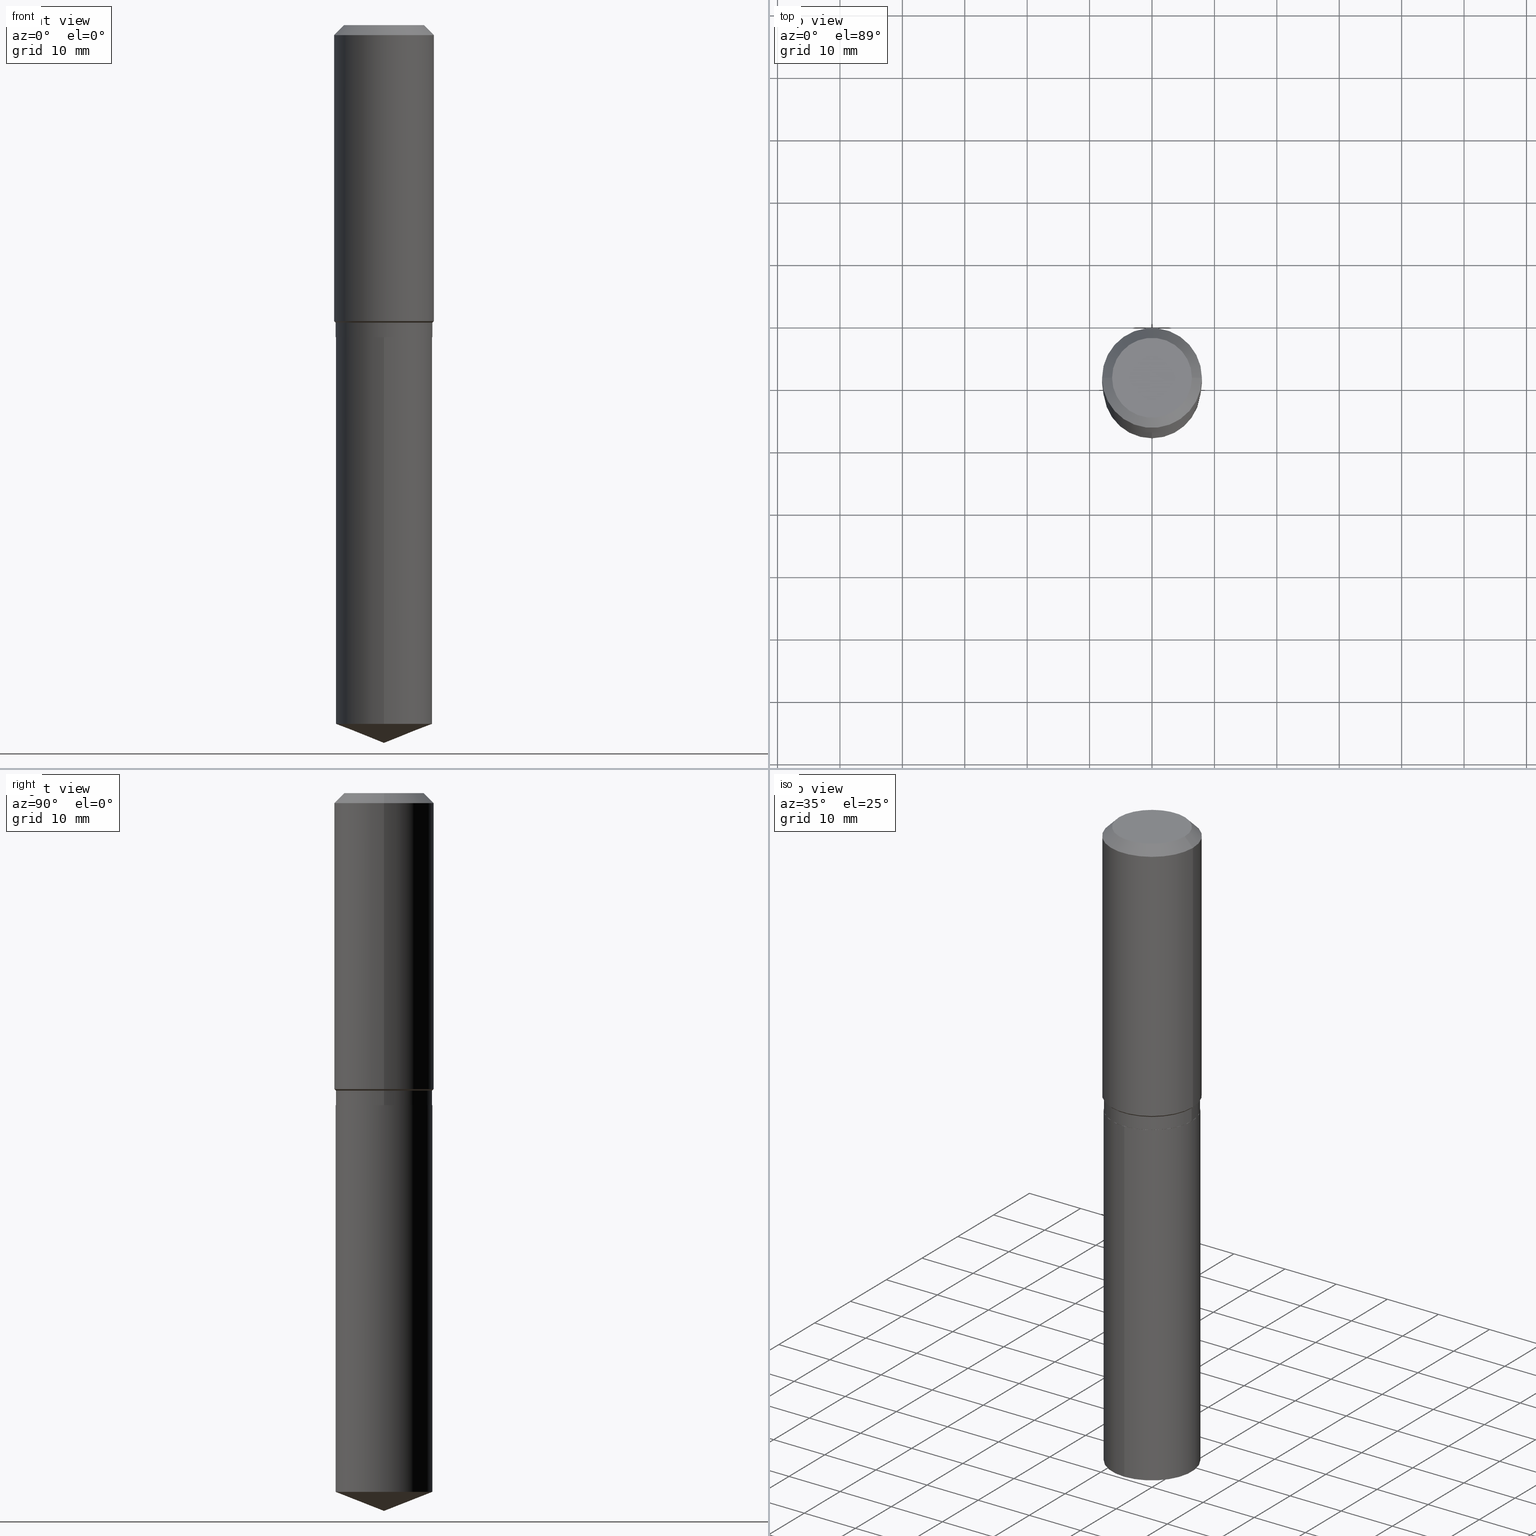
[diagram: canonical four-view strip — front | top / right | iso, engineering-drawing reading convention]
A machine part, canonical four-view strip (front | top / right | iso — engineering-drawing reading convention). The complete STEP part file that produces these views, byte-faithful:
ISO-10303-21;
HEADER;
FILE_DESCRIPTION (( 'STEP AP203' ),
    '1' );
FILE_NAME ('66500.STEP',
    '2024-04-24T23:49:17',
    ( '' ),
    ( '' ),
    'SwSTEP 2.0',
    'SolidWorks 2023',
    '' );
FILE_SCHEMA (( 'CONFIG_CONTROL_DESIGN' ));
ENDSEC;

DATA;
#1 = AXIS2_PLACEMENT_3D ( 'NONE', #12, #79, #279 ) ;
#2 = CARTESIAN_POINT ( 'NONE',  ( 0.2519600000000000173, -2.054606664725195058E-15, 3.855188123729206640E-18 ) ) ;
#3 = APPROVAL_PERSON_ORGANIZATION ( #462, #112, #424 ) ;
#4 = ORIENTED_EDGE ( 'NONE', *, *, #351, .F. ) ;
#5 = PERSON_AND_ORGANIZATION_ROLE ( 'design_supplier' ) ;
#6 = ORIENTED_EDGE ( 'NONE', *, *, #400, .T. ) ;
#7 = DIRECTION ( 'NONE',  ( -2.445468806185136597E-29, 3.491481338843145583E-15, 1.000000000000000000 ) ) ;
#8 = CIRCLE ( 'NONE', #132, 0.3050999999999999823 ) ;
#9 = DIRECTION ( 'NONE',  ( -2.445510039064079162E-29, 3.491422291013670313E-15, 1.000000000000000000 ) ) ;
#10 = EDGE_CURVE ( 'NONE', #343, #380, #152, .T. ) ;
#11 =( NAMED_UNIT ( * ) PLANE_ANGLE_UNIT ( ) SI_UNIT ( $, .RADIAN. ) );
#12 = CARTESIAN_POINT ( 'NONE',  ( 1.540400801016026329E-30, -2.199284095337310135E-16, -0.06299000000000036514 ) ) ;
#13 = PERSON_AND_ORGANIZATION_ROLE ( 'creator' ) ;
#14 = DIRECTION ( 'NONE',  ( 0.7071067811866199593, -2.468850131083015945E-15, 0.7071067811864750752 ) ) ;
#15 = DIRECTION ( 'NONE',  ( 1.000000000000000000, -6.982962677686265922E-15, 4.876176775795935232E-29 ) ) ;
#16 = VECTOR ( 'NONE', #50, 39.37007874015748143 ) ;
#17 = MANIFOLD_SOLID_BREP ( 'Body-Move/Copy2[1]', #53 ) ;
#18 = CARTESIAN_POINT ( 'NONE',  ( -0.3149500000000002298, -4.281265035544539989E-15, -1.867149999999999421 ) ) ;
#19 = CC_DESIGN_PERSON_AND_ORGANIZATION_ASSIGNMENT ( #357, #13, ( #363 ) ) ;
#20 = CARTESIAN_POINT ( 'NONE',  ( 4.813905344975440153E-29, -6.872981015512730130E-15, -1.968499999999999472 ) ) ;
#21 = CYLINDRICAL_SURFACE ( 'NONE', #259, 0.3050999999999999823 ) ;
#22 = VECTOR ( 'NONE', #83, 39.37007874015748854 ) ;
#23 = VECTOR ( 'NONE', #338, 39.37007874015748143 ) ;
#24 = EDGE_CURVE ( 'NONE', #447, #222, #321, .T. ) ;
#25 = CARTESIAN_POINT ( 'NONE',  ( 4.813905344975440153E-29, -6.872981015512730130E-15, -1.968499999999999472 ) ) ;
#26 = ORIENTED_EDGE ( 'NONE', *, *, #24, .F. ) ;
#27 = CYLINDRICAL_SURFACE ( 'NONE', #106, 0.3050999999999999823 ) ;
#28 = ADVANCED_FACE ( 'NONE', ( #385 ), #276, .T. ) ;
#29 = ORIENTED_EDGE ( 'NONE', *, *, #86, .T. ) ;
#30 = ORIENTED_EDGE ( 'NONE', *, *, #483, .F. ) ;
#31 = VECTOR ( 'NONE', #325, 39.37007874015748143 ) ;
#32 = DIRECTION ( 'NONE',  ( -2.445468806185136877E-29, 3.491481338843145188E-15, 1.000000000000000000 ) ) ;
#33 = EDGE_LOOP ( 'NONE', ( #257, #457, #339, #133 ) ) ;
#34 = LINE ( 'NONE', #416, #23 ) ;
#35 = ORIENTED_EDGE ( 'NONE', *, *, #435, .F. ) ;
#36 = DIRECTION ( 'NONE',  ( -2.445510039064079162E-29, 3.491422291013670313E-15, 1.000000000000000000 ) ) ;
#37 = ORIENTED_EDGE ( 'NONE', *, *, #61, .T. ) ;
#38 = AXIS2_PLACEMENT_3D ( 'NONE', #432, #273, #275 ) ;
#39 = CC_DESIGN_SECURITY_CLASSIFICATION ( #134, ( #149 ) ) ;
#40 = EDGE_LOOP ( 'NONE', ( #238, #378, #98, #4 ) ) ;
#41 = DIRECTION ( 'NONE',  ( 1.000000000000000000, -6.982962677686266711E-15, 4.876115136096691995E-29 ) ) ;
#42 = CARTESIAN_POINT ( 'NONE',  ( 4.813905344975440153E-29, -6.872981015512730130E-15, -1.968499999999999472 ) ) ;
#43 = EDGE_CURVE ( 'NONE', #485, #380, #397, .T. ) ;
#44 = APPROVAL_ROLE ( '' ) ;
#45 = CIRCLE ( 'NONE', #229, 0.3045999999999999819 ) ;
#46 = LINE ( 'NONE', #76, #405 ) ;
#47 = CC_DESIGN_APPROVAL ( #282, ( #363 ) ) ;
#48 = CC_DESIGN_DATE_AND_TIME_ASSIGNMENT ( #390, #278, ( #363 ) ) ;
#49 = LENGTH_MEASURE_WITH_UNIT ( LENGTH_MEASURE( 0.02539999999999999897 ), #460 );
#50 = DIRECTION ( 'NONE',  ( -2.445468806185136877E-29, 3.491481338843145188E-15, 1.000000000000000000 ) ) ;
#51 = FACE_OUTER_BOUND ( 'NONE', #383, .T. ) ;
#52 = EDGE_CURVE ( 'NONE', #228, #440, #413, .T. ) ;
#53 = CLOSED_SHELL ( 'NONE', ( #340, #265, #381, #332, #216 ) ) ;
#54 = VECTOR ( 'NONE', #422, 39.37007874015748143 ) ;
#55 = EDGE_CURVE ( 'NONE', #85, #450, #389, .T. ) ;
#56 = AXIS2_PLACEMENT_3D ( 'NONE', #311, #235, #358 ) ;
#57 = APPROVAL ( #236, 'UNSPECIFIED' ) ;
#58 = AXIS2_PLACEMENT_3D ( 'NONE', #154, #201, #41 ) ;
#59 = LOCAL_TIME ( 19, 49, 17.00000000000000000, #231 ) ;
#60 = LINE ( 'NONE', #248, #31 ) ;
#61 = EDGE_CURVE ( 'NONE', #418, #380, #284, .T. ) ;
#62 = CARTESIAN_POINT ( 'NONE',  ( -0.3149500000000001743, 2.237854346276436774E-15, -1.549218606675783237E-29 ) ) ;
#63 = ORIENTED_EDGE ( 'NONE', *, *, #324, .T. ) ;
#64 = CARTESIAN_POINT ( 'NONE',  ( 0.3045999999999999819, -8.999991447135967386E-15, -1.968499999999999472 ) ) ;
#65 = EDGE_LOOP ( 'NONE', ( #192, #100, #225, #141 ) ) ;
#66 = AXIS2_PLACEMENT_3D ( 'NONE', #212, #130, #280 ) ;
#67 = AXIS2_PLACEMENT_3D ( 'NONE', #25, #488, #291 ) ;
#68 = LINE ( 'NONE', #379, #128 ) ;
#69 = EDGE_LOOP ( 'NONE', ( #306, #297, #490, #37 ) ) ;
#70 = DIRECTION ( 'NONE',  ( -2.445510039064079162E-29, 3.491422291013670313E-15, 1.000000000000000000 ) ) ;
#71 = ORIENTED_EDGE ( 'NONE', *, *, #155, .F. ) ;
#72 = DIRECTION ( 'NONE',  ( 1.000000000000000000, -6.982962677686265922E-15, 4.876176775795935232E-29 ) ) ;
#73 = DIRECTION ( 'NONE',  ( 1.000000000000000000, -6.982962677686268288E-15, 0.000000000000000000 ) ) ;
#74 = VECTOR ( 'NONE', #480, 39.37007874015748143 ) ;
#75 = CALENDAR_DATE ( 2024, 24, 4 ) ;
#76 = CARTESIAN_POINT ( 'NONE',  ( 0.3045999999999999819, -8.999991447135967386E-15, -1.968499999999999472 ) ) ;
#77 = PERSON_AND_ORGANIZATION ( #296, #286 ) ;
#78 = ADVANCED_FACE ( 'NONE', ( #51 ), #125, .T. ) ;
#79 = DIRECTION ( 'NONE',  ( 2.445468806185136597E-29, -3.491481338843145583E-15, -1.000000000000000000 ) ) ;
#80 = DIRECTION ( 'NONE',  ( 1.000000000000000000, -6.982962677686265133E-15, 0.000000000000000000 ) ) ;
#81 = CALENDAR_DATE ( 2024, 24, 4 ) ;
#82 = AXIS2_PLACEMENT_3D ( 'NONE', #174, #244, #402 ) ;
#83 = DIRECTION ( 'NONE',  ( -6.497071151882117470E-15, -0.9304175679820243516, 0.3665012267242979127 ) ) ;
#84 = AXIS2_PLACEMENT_3D ( 'NONE', #307, #36, #458 ) ;
#85 = VERTEX_POINT ( 'NONE', #196 ) ;
#86 = EDGE_CURVE ( 'NONE', #179, #343, #269, .T. ) ;
#87 = FACE_OUTER_BOUND ( 'NONE', #40, .T. ) ;
#88 = CYLINDRICAL_SURFACE ( 'NONE', #314, 0.3149500000000001743 ) ;
#89 = AXIS2_PLACEMENT_3D ( 'NONE', #20, #289, #437 ) ;
#90 = CONICAL_SURFACE ( 'NONE', #277, 99.94676754583970535, 1.195550537616118625 ) ;
#91 = EDGE_CURVE ( 'NONE', #447, #175, #271, .T. ) ;
#92 = FACE_OUTER_BOUND ( 'NONE', #481, .T. ) ;
#93 = CARTESIAN_POINT ( 'NONE',  ( 4.813905344975440153E-29, -6.872981015512730130E-15, -1.968499999999999472 ) ) ;
#94 = EDGE_CURVE ( 'NONE', #175, #348, #441, .T. ) ;
#95 = APPLICATION_CONTEXT ( 'configuration controlled 3d designs of mechanical parts and assemblies' ) ;
#96 = VECTOR ( 'NONE', #32, 39.37007874015748143 ) ;
#97 = FACE_OUTER_BOUND ( 'NONE', #33, .T. ) ;
#98 = ORIENTED_EDGE ( 'NONE', *, *, #200, .F. ) ;
#99 = DIRECTION ( 'NONE',  ( -2.445468806185136597E-29, 3.491481338843145583E-15, 1.000000000000000000 ) ) ;
#100 = ORIENTED_EDGE ( 'NONE', *, *, #346, .T. ) ;
#101 = DIRECTION ( 'NONE',  ( 1.000000000000000000, -6.982962677686265133E-15, 0.000000000000000000 ) ) ;
#102 = PRODUCT ( '66500', '66500', '', ( #392 ) ) ;
#103 = ORIENTED_EDGE ( 'NONE', *, *, #472, .T. ) ;
#104 = ORIENTED_EDGE ( 'NONE', *, *, #230, .F. ) ;
#105 = CIRCLE ( 'NONE', #159, 0.3050999999999999823 ) ;
#106 = AXIS2_PLACEMENT_3D ( 'NONE', #371, #99, #256 ) ;
#107 = FACE_OUTER_BOUND ( 'NONE', #148, .T. ) ;
#108 = ORIENTED_EDGE ( 'NONE', *, *, #164, .T. ) ;
#109 = ORIENTED_EDGE ( 'NONE', *, *, #478, .F. ) ;
#110 = CARTESIAN_POINT ( 'NONE',  ( 0.3149500000000002298, -8.718403477158267422E-15, -1.867149999999999421 ) ) ;
#111 = EDGE_LOOP ( 'NONE', ( #317, #185 ) ) ;
#112 = APPROVAL ( #270, 'UNSPECIFIED' ) ;
#113 = UNCERTAINTY_MEASURE_WITH_UNIT (LENGTH_MEASURE( 1.000000000000000082E-05 ), #124, 'distance_accuracy_value', 'NONE');
#114 = COORDINATED_UNIVERSAL_TIME_OFFSET ( 5, 0, .BEHIND. ) ;
#115 = DIRECTION ( 'NONE',  ( 1.000000000000000000, -6.982962677686265133E-15, 0.000000000000000000 ) ) ;
#116 = EDGE_LOOP ( 'NONE', ( #408, #220, #336, #30 ) ) ;
#117 = EDGE_CURVE ( 'NONE', #485, #295, #205, .T. ) ;
#118 = AXIS2_PLACEMENT_3D ( 'NONE', #263, #420, #73 ) ;
#119 = APPROVAL_PERSON_ORGANIZATION ( #157, #57, #153 ) ;
#120 = CARTESIAN_POINT ( 'NONE',  ( 0.000000000000000000, 0.000000000000000000, 0.000000000000000000 ) ) ;
#121 = DIRECTION ( 'NONE',  ( 1.000000000000000000, -6.982962677686267499E-15, 0.000000000000000000 ) ) ;
#122 = DIRECTION ( 'NONE',  ( 1.000000000000000000, -6.982962677686266711E-15, 0.000000000000000000 ) ) ;
#123 = LINE ( 'NONE', #267, #54 ) ;
#124 =( CONVERSION_BASED_UNIT ( 'INCH', #49 ) LENGTH_UNIT ( ) NAMED_UNIT ( #444 ) );
#125 = CONICAL_SURFACE ( 'NONE', #139, 0.3050999999999999823, 0.7853981633974518317 ) ;
#126 = LOCAL_TIME ( 19, 49, 17.00000000000000000, #166 ) ;
#127 = DIRECTION ( 'NONE',  ( -2.445468806185136597E-29, 3.491481338843145583E-15, 1.000000000000000000 ) ) ;
#128 = VECTOR ( 'NONE', #260, 39.37007874015748143 ) ;
#129 = EDGE_CURVE ( 'NONE', #345, #450, #180, .T. ) ;
#130 = DIRECTION ( 'NONE',  ( -2.445468806185136597E-29, 3.491481338843145583E-15, 1.000000000000000000 ) ) ;
#131 = DIRECTION ( 'NONE',  ( -6.982962677686265133E-15, -1.000000000000000000, 3.581577179500837048E-15 ) ) ;
#132 = AXIS2_PLACEMENT_3D ( 'NONE', #370, #245, #434 ) ;
#133 = ORIENTED_EDGE ( 'NONE', *, *, #135, .F. ) ;
#134 = SECURITY_CLASSIFICATION ( '', '', #464 ) ;
#135 = EDGE_CURVE ( 'NONE', #222, #348, #123, .T. ) ;
#136 = LINE ( 'NONE', #242, #394 ) ;
#137 = DIRECTION ( 'NONE',  ( 6.982962677686265922E-15, 1.000000000000000000, -3.491422291013670313E-15 ) ) ;
#138 = CARTESIAN_POINT ( 'NONE',  ( 2.167865886804172432E-15, 0.3050999999999845502, -4.407417913889882577 ) ) ;
#139 = AXIS2_PLACEMENT_3D ( 'NONE', #427, #7, #80 ) ;
#140 = CARTESIAN_POINT ( 'NONE',  ( -2.130501912961971401E-15, -0.3051000000000153034, -4.407417913889880801 ) ) ;
#141 = ORIENTED_EDGE ( 'NONE', *, *, #43, .F. ) ;
#142 = PRODUCT_DEFINITION_SHAPE ( 'NONE', 'NONE',  #363 ) ;
#143 = EDGE_CURVE ( 'NONE', #228, #447, #158, .T. ) ;
#144 = CARTESIAN_POINT ( 'NONE',  ( 1.540400801016026329E-30, -2.199284095337310135E-16, -0.06299000000000036514 ) ) ;
#145 = EDGE_LOOP ( 'NONE', ( #443, #156, #191, #104 ) ) ;
#146 = ORIENTED_EDGE ( 'NONE', *, *, #478, .T. ) ;
#147 = CARTESIAN_POINT ( 'NONE',  ( -2.130501912962031354E-15, -0.3051000000000068657, -1.968499999999998362 ) ) ;
#148 = EDGE_LOOP ( 'NONE', ( #227, #261, #187 ) ) ;
#149 = PRODUCT_DEFINITION_FORMATION_WITH_SPECIFIED_SOURCE ( 'ANY', '', #102, .NOT_KNOWN. ) ;
#150 = EDGE_CURVE ( 'NONE', #380, #418, #342, .T. ) ;
#151 = DIRECTION ( 'NONE',  ( -6.982962677686266711E-15, -1.000000000000000000, 3.498627837350013689E-15 ) ) ;
#152 = LINE ( 'NONE', #309, #361 ) ;
#153 = APPROVAL_ROLE ( '' ) ;
#154 = CARTESIAN_POINT ( 'NONE',  ( -9.427742298522569579E-47, 1.346031739168368629E-32, 3.855188123715871501E-18 ) ) ;
#155 = EDGE_CURVE ( 'NONE', #440, #222, #46, .T. ) ;
#156 = ORIENTED_EDGE ( 'NONE', *, *, #10, .T. ) ;
#157 = PERSON_AND_ORGANIZATION ( #296, #286 ) ;
#158 = LINE ( 'NONE', #237, #369 ) ;
#159 = AXIS2_PLACEMENT_3D ( 'NONE', #42, #9, #131 ) ;
#160 = PERSON_AND_ORGANIZATION ( #296, #286 ) ;
#161 = CARTESIAN_POINT ( 'NONE',  ( 4.813905344975440153E-29, -6.872981015512730130E-15, -1.968499999999999472 ) ) ;
#162 = CARTESIAN_POINT ( 'NONE',  ( -0.3050999999999999823, 2.167865886804065542E-15, -1.500767096036771618E-29 ) ) ;
#163 = CALENDAR_DATE ( 2024, 24, 4 ) ;
#164 = EDGE_CURVE ( 'NONE', #440, #228, #45, .T. ) ;
#165 = FACE_OUTER_BOUND ( 'NONE', #417, .T. ) ;
#166 = COORDINATED_UNIVERSAL_TIME_OFFSET ( 5, 0, .BEHIND. ) ;
#167 = AXIS2_PLACEMENT_3D ( 'NONE', #320, #232, #425 ) ;
#168 = CIRCLE ( 'NONE', #292, 0.3050999999999999823 ) ;
#169 = FACE_OUTER_BOUND ( 'NONE', #288, .T. ) ;
#170 = DIRECTION ( 'NONE',  ( -0.7071067811865453523, 2.468850131082234184E-15, -0.7071067811865496822 ) ) ;
#171 = ADVANCED_FACE ( 'NONE', ( #165 ), #319, .T. ) ;
#172 = CARTESIAN_POINT ( 'NONE',  ( 4.813905344975440153E-29, -6.872981015512730130E-15, -1.968499999999999472 ) ) ;
#173 = AXIS2_PLACEMENT_3D ( 'NONE', #419, #186, #299 ) ;
#174 = CARTESIAN_POINT ( 'NONE',  ( 4.566057081468576714E-29, -6.519119381820977551E-15, -1.867149999999999421 ) ) ;
#175 = VERTEX_POINT ( 'NONE', #468 ) ;
#176 = ADVANCED_FACE ( 'NONE', ( #391 ), #188, .T. ) ;
#177 = CARTESIAN_POINT ( 'NONE',  ( 4.812682610572347912E-29, -6.871235274843308626E-15, -1.967999999999999527 ) ) ;
#178 = FACE_OUTER_BOUND ( 'NONE', #145, .T. ) ;
#179 = VERTEX_POINT ( 'NONE', #234 ) ;
#180 = CIRCLE ( 'NONE', #258, 0.3050999999999999823 ) ;
#181 = LOCAL_TIME ( 19, 49, 17.00000000000000000, #395 ) ;
#182 = DIRECTION ( 'NONE',  ( -6.982962677686265133E-15, -1.000000000000000000, 3.581577179500837048E-15 ) ) ;
#183 = ORIENTED_EDGE ( 'NONE', *, *, #94, .T. ) ;
#184 = CARTESIAN_POINT ( 'NONE',  ( -0.3050999999999999823, -4.544506987121881132E-15, -1.967999999999999527 ) ) ;
#185 = ORIENTED_EDGE ( 'NONE', *, *, #483, .T. ) ;
#186 = DIRECTION ( 'NONE',  ( -2.445468806185136597E-29, 3.491481338843145583E-15, 1.000000000000000000 ) ) ;
#187 = ORIENTED_EDGE ( 'NONE', *, *, #129, .F. ) ;
#188 = CONICAL_SURFACE ( 'NONE', #1, 0.3149500000000000077, 0.7853981633974452814 ) ;
#189 = CIRCLE ( 'NONE', #84, 0.3050999999999999823 ) ;
#190 = APPROVAL_DATE_TIME ( #266, #57 ) ;
#191 = ORIENTED_EDGE ( 'NONE', *, *, #150, .T. ) ;
#192 = ORIENTED_EDGE ( 'NONE', *, *, #117, .T. ) ;
#193 = APPROVAL_STATUS ( 'not_yet_approved' ) ;
#194 = DIRECTION ( 'NONE',  ( -2.445468806185136597E-29, 3.491481338843145583E-15, 1.000000000000000000 ) ) ;
#195 = PERSON_AND_ORGANIZATION ( #296, #286 ) ;
#196 = CARTESIAN_POINT ( 'NONE',  ( 1.107229125286652387E-28, -1.580776356479349087E-14, -4.527599999999999625 ) ) ;
#197 = AXIS2_PLACEMENT_3D ( 'NONE', #239, #465, #122 ) ;
#198 = DATE_AND_TIME ( #428, #322 ) ;
#199 = CARTESIAN_POINT ( 'NONE',  ( 1.077830358784636667E-28, -1.538827338602042201E-14, -4.407417913889881689 ) ) ;
#200 = EDGE_CURVE ( 'NONE', #253, #489, #105, .T. ) ;
#201 = DIRECTION ( 'NONE',  ( -2.445468806185136597E-29, 3.491481338843145583E-15, 1.000000000000000000 ) ) ;
#202 = APPROVAL_DATE_TIME ( #329, #112 ) ;
#203 = DIRECTION ( 'NONE',  ( -2.445468806185136597E-29, 3.491481338843145583E-15, 1.000000000000000000 ) ) ;
#204 = ORIENTED_EDGE ( 'NONE', *, *, #135, .T. ) ;
#205 = CIRCLE ( 'NONE', #56, 0.3149500000000002298 ) ;
#206 = CIRCLE ( 'NONE', #173, 0.2519600000000000173 ) ;
#207 = EDGE_CURVE ( 'NONE', #348, #485, #326, .T. ) ;
#208 = DIRECTION ( 'NONE',  ( -2.445468806185136597E-29, 3.491481338843145583E-15, 1.000000000000000000 ) ) ;
#209 = CC_DESIGN_PERSON_AND_ORGANIZATION_ASSIGNMENT ( #195, #347, ( #149 ) ) ;
#210 = CARTESIAN_POINT ( 'NONE',  ( 0.3050999999999999823, -8.684012385970661829E-15, -1.876999999999999780 ) ) ;
#211 = APPLICATION_CONTEXT ( 'configuration controlled 3d designs of mechanical parts and assemblies' ) ;
#212 = CARTESIAN_POINT ( 'NONE',  ( 4.813905344975440153E-29, -6.872981015512730130E-15, -1.968499999999999472 ) ) ;
#213 = AXIS2_PLACEMENT_3D ( 'NONE', #467, #203, #115 ) ;
#214 = LOCAL_TIME ( 19, 49, 17.00000000000000000, #114 ) ;
#215 = CARTESIAN_POINT ( 'NONE',  ( 0.3050999999999999823, -9.001737187805389679E-15, -1.967999999999999527 ) ) ;
#216 = ADVANCED_FACE ( 'NONE', ( #398 ), #404, .F. ) ;
#217 = FACE_OUTER_BOUND ( 'NONE', #448, .T. ) ;
#218 = EDGE_LOOP ( 'NONE', ( #330, #63, #301, #281 ) ) ;
#219 = CARTESIAN_POINT ( 'NONE',  ( 0.3149500000000000077, -2.419212504871020909E-15, -0.06299000000000036514 ) ) ;
#220 = ORIENTED_EDGE ( 'NONE', *, *, #129, .T. ) ;
#221 = CARTESIAN_POINT ( 'NONE',  ( -4.713871149261284790E-47, 6.730158695841843144E-33, 1.927594061857935750E-18 ) ) ;
#222 = VERTEX_POINT ( 'NONE', #215 ) ;
#223 = CYLINDRICAL_SURFACE ( 'NONE', #305, 0.3149500000000001743 ) ;
#224 = ORIENTED_EDGE ( 'NONE', *, *, #117, .F. ) ;
#225 = ORIENTED_EDGE ( 'NONE', *, *, #150, .F. ) ;
#226 = PERSON_AND_ORGANIZATION_ROLE ( 'design_owner' ) ;
#227 = ORIENTED_EDGE ( 'NONE', *, *, #475, .F. ) ;
#228 = VERTEX_POINT ( 'NONE', #364 ) ;
#229 = AXIS2_PLACEMENT_3D ( 'NONE', #356, #127, #121 ) ;
#230 = EDGE_CURVE ( 'NONE', #179, #418, #136, .T. ) ;
#231 = COORDINATED_UNIVERSAL_TIME_OFFSET ( 5, 0, .BEHIND. ) ;
#232 = DIRECTION ( 'NONE',  ( -2.445468806185136597E-29, 3.491481338843145583E-15, 1.000000000000000000 ) ) ;
#233 = APPLICATION_PROTOCOL_DEFINITION ( 'international standard', 'config_control_design', 1994, #95 ) ;
#234 = CARTESIAN_POINT ( 'NONE',  ( -0.2519600000000000173, 1.869391481036695286E-15, 3.855188123703182704E-18 ) ) ;
#235 = DIRECTION ( 'NONE',  ( -2.445468806185136597E-29, 3.491481338843145583E-15, 1.000000000000000000 ) ) ;
#236 = APPROVAL_STATUS ( 'not_yet_approved' ) ;
#237 = CARTESIAN_POINT ( 'NONE',  ( -0.3045999999999999819, -4.708667842387465092E-15, -1.968499999999999472 ) ) ;
#238 = ORIENTED_EDGE ( 'NONE', *, *, #315, .T. ) ;
#239 = CARTESIAN_POINT ( 'NONE',  ( 1.540400801016026329E-30, -2.199284095337310135E-16, -0.06299000000000036514 ) ) ;
#240 = EDGE_CURVE ( 'NONE', #345, #489, #60, .T. ) ;
#241 = CYLINDRICAL_SURFACE ( 'NONE', #415, 0.3050999999999999823 ) ;
#242 = CARTESIAN_POINT ( 'NONE',  ( -0.3149500000000000077, 1.979355685803558833E-15, -0.06299000000000036514 ) ) ;
#243 = SHAPE_DEFINITION_REPRESENTATION ( #142, #473 ) ;
#244 = DIRECTION ( 'NONE',  ( -2.445468806185136597E-29, 3.491481338843145583E-15, 1.000000000000000000 ) ) ;
#245 = DIRECTION ( 'NONE',  ( -2.445510039064079162E-29, 3.491422291013670313E-15, 1.000000000000000000 ) ) ;
#246 = ADVANCED_FACE ( 'NONE', ( #283 ), #88, .T. ) ;
#247 = VECTOR ( 'NONE', #366, 39.37007874015748143 ) ;
#248 = CARTESIAN_POINT ( 'NONE',  ( 2.167865886804113268E-15, 0.3050999999999930989, -1.968500000000000583 ) ) ;
#249 = CC_DESIGN_APPROVAL ( #112, ( #134 ) ) ;
#250 = CARTESIAN_POINT ( 'NONE',  ( 0.3050999999999999823, -8.684012385970661829E-15, -1.876999999999999780 ) ) ;
#251 = ORIENTED_EDGE ( 'NONE', *, *, #207, .F. ) ;
#252 = CARTESIAN_POINT ( 'NONE',  ( -0.3149500000000000077, -1.131669549400917718E-15, -0.06299000000000036514 ) ) ;
#253 = VERTEX_POINT ( 'NONE', #438 ) ;
#254 = EDGE_LOOP ( 'NONE', ( #103, #146, #224, #251 ) ) ;
#255 = PRODUCT_RELATED_PRODUCT_CATEGORY ( 'detail', '', ( #102 ) ) ;
#256 = DIRECTION ( 'NONE',  ( 1.000000000000000000, -6.982962677686266711E-15, 4.876176775795935793E-29 ) ) ;
#257 = ORIENTED_EDGE ( 'NONE', *, *, #435, .T. ) ;
#258 = AXIS2_PLACEMENT_3D ( 'NONE', #199, #350, #461 ) ;
#259 = AXIS2_PLACEMENT_3D ( 'NONE', #172, #328, #474 ) ;
#260 = DIRECTION ( 'NONE',  ( 6.611014441532064222E-15, 0.9304175679820269051, 0.3665012267242913624 ) ) ;
#261 = ORIENTED_EDGE ( 'NONE', *, *, #55, .T. ) ;
#262 = CARTESIAN_POINT ( 'NONE',  ( 2.167865886804173615E-15, 0.3050999999999930989, -1.968500000000000583 ) ) ;
#263 = CARTESIAN_POINT ( 'NONE',  ( 4.812682610572347912E-29, -6.871235274843308626E-15, -1.967999999999999527 ) ) ;
#264 = ORIENTED_EDGE ( 'NONE', *, *, #207, .T. ) ;
#265 = ADVANCED_FACE ( 'NONE', ( #169 ), #436, .T. ) ;
#266 = DATE_AND_TIME ( #163, #181 ) ;
#267 = CARTESIAN_POINT ( 'NONE',  ( 0.3050999999999999823, -2.130501912962079869E-15, 1.487721534295339875E-29 ) ) ;
#268 = EDGE_LOOP ( 'NONE', ( #108, #374, #35, #71 ) ) ;
#269 = CIRCLE ( 'NONE', #58, 0.2519600000000000173 ) ;
#270 = APPROVAL_STATUS ( 'not_yet_approved' ) ;
#271 = LINE ( 'NONE', #162, #399 ) ;
#272 = PERSON_AND_ORGANIZATION ( #296, #286 ) ;
#273 = DIRECTION ( 'NONE',  ( -2.445468806185136597E-29, 3.491481338843145583E-15, 1.000000000000000000 ) ) ;
#274 = COORDINATED_UNIVERSAL_TIME_OFFSET ( 5, 0, .BEHIND. ) ;
#275 = DIRECTION ( 'NONE',  ( 1.000000000000000000, -6.982962677686265133E-15, 0.000000000000000000 ) ) ;
#276 = CONICAL_SURFACE ( 'NONE', #38, 0.3050999999999999823, 0.7853981633974518317 ) ;
#277 = AXIS2_PLACEMENT_3D ( 'NONE', #477, #70, #151 ) ;
#278 = DATE_TIME_ROLE ( 'creation_date' ) ;
#279 = DIRECTION ( 'NONE',  ( -1.000000000000000000, 6.982962677686266711E-15, 0.000000000000000000 ) ) ;
#280 = DIRECTION ( 'NONE',  ( 1.000000000000000000, -6.982962677686267499E-15, 0.000000000000000000 ) ) ;
#281 = ORIENTED_EDGE ( 'NONE', *, *, #61, .F. ) ;
#282 = APPROVAL ( #193, 'UNSPECIFIED' ) ;
#283 = FACE_OUTER_BOUND ( 'NONE', #218, .T. ) ;
#284 = CIRCLE ( 'NONE', #197, 0.3149500000000000077 ) ;
#285 = MANIFOLD_SOLID_BREP ( 'Body-Move/Copy2[2]', #333 ) ;
#286 = ORGANIZATION ( 'UNSPECIFIED', 'UNSPECIFIED', '' ) ;
#287 = FACE_OUTER_BOUND ( 'NONE', #268, .T. ) ;
#288 = EDGE_LOOP ( 'NONE', ( #375, #293, #451 ) ) ;
#289 = DIRECTION ( 'NONE',  ( -2.445468806185136597E-29, 3.491481338843145583E-15, 1.000000000000000000 ) ) ;
#290 = DESIGN_CONTEXT ( 'detailed design', #211, 'design' ) ;
#291 = DIRECTION ( 'NONE',  ( 1.000000000000000000, -6.982962677686265922E-15, 4.876176775795935793E-29 ) ) ;
#292 = AXIS2_PLACEMENT_3D ( 'NONE', #294, #442, #101 ) ;
#293 = ORIENTED_EDGE ( 'NONE', *, *, #475, .T. ) ;
#294 = CARTESIAN_POINT ( 'NONE',  ( 4.590144949209500643E-29, -6.553510473008583144E-15, -1.876999999999999780 ) ) ;
#295 = VERTEX_POINT ( 'NONE', #18 ) ;
#296 = PERSON ( 'UNSPECIFIED', 'UNSPECIFIED', 'UNSPECIFIED', ('UNSPECIFIED'), ('UNSPECIFIED'), ('UNSPECIFIED') ) ;
#297 = ORIENTED_EDGE ( 'NONE', *, *, #86, .F. ) ;
#298 = ADVANCED_FACE ( 'NONE', ( #287 ), #334, .T. ) ;
#299 = DIRECTION ( 'NONE',  ( 1.000000000000000000, -6.982962677686266711E-15, 4.876115136096691995E-29 ) ) ;
#300 = ORIENTED_EDGE ( 'NONE', *, *, #52, .F. ) ;
#301 = ORIENTED_EDGE ( 'NONE', *, *, #43, .T. ) ;
#302 = DIRECTION ( 'NONE',  ( 2.445468806185136597E-29, -3.491481338843145583E-15, -1.000000000000000000 ) ) ;
#303 = ORIENTED_EDGE ( 'NONE', *, *, #324, .F. ) ;
#304 = CIRCLE ( 'NONE', #82, 0.3149500000000002298 ) ;
#305 = AXIS2_PLACEMENT_3D ( 'NONE', #409, #411, #72 ) ;
#306 = ORIENTED_EDGE ( 'NONE', *, *, #10, .F. ) ;
#307 = CARTESIAN_POINT ( 'NONE',  ( 4.813905344975440153E-29, -6.872981015512730130E-15, -1.968499999999999472 ) ) ;
#308 = ADVANCED_FACE ( 'NONE', ( #92 ), #453, .T. ) ;
#309 = CARTESIAN_POINT ( 'NONE',  ( 0.3149500000000000077, -2.380642253931875190E-15, -0.06299000000000036514 ) ) ;
#310 = PERSON_AND_ORGANIZATION_ROLE ( 'classification_officer' ) ;
#311 = CARTESIAN_POINT ( 'NONE',  ( 4.566057081468576714E-29, -6.519119381820977551E-15, -1.867149999999999421 ) ) ;
#312 = DIRECTION ( 'NONE',  ( 1.000000000000000000, 0.000000000000000000, 0.000000000000000000 ) ) ;
#313 = CARTESIAN_POINT ( 'NONE',  ( 1.540400801016026329E-30, -2.199284095337310135E-16, -0.06299000000000036514 ) ) ;
#314 = AXIS2_PLACEMENT_3D ( 'NONE', #401, #208, #15 ) ;
#315 = EDGE_CURVE ( 'NONE', #450, #345, #8, .T. ) ;
#316 = CARTESIAN_POINT ( 'NONE',  ( 1.107212891902212667E-28, -1.580799603609813503E-14, -4.527599999999999625 ) ) ;
#317 = ORIENTED_EDGE ( 'NONE', *, *, #200, .T. ) ;
#318 = APPROVAL_DATE_TIME ( #198, #282 ) ;
#319 = CYLINDRICAL_SURFACE ( 'NONE', #167, 0.3050999999999999823 ) ;
#320 = CARTESIAN_POINT ( 'NONE',  ( 0.000000000000000000, 0.000000000000000000, 0.000000000000000000 ) ) ;
#321 = CIRCLE ( 'NONE', #118, 0.3050999999999999823 ) ;
#322 = LOCAL_TIME ( 19, 49, 17.00000000000000000, #274 ) ;
#323 = DIRECTION ( 'NONE',  ( -2.445510039064079162E-29, 3.491422291013670313E-15, 1.000000000000000000 ) ) ;
#324 = EDGE_CURVE ( 'NONE', #295, #485, #304, .T. ) ;
#325 = DIRECTION ( 'NONE',  ( -2.445510039064079162E-29, 3.491422291013670313E-15, 1.000000000000000000 ) ) ;
#326 = LINE ( 'NONE', #210, #247 ) ;
#327 = AXIS2_PLACEMENT_3D ( 'NONE', #161, #194, #360 ) ;
#328 = DIRECTION ( 'NONE',  ( -2.445510039064079162E-29, 3.491422291013670313E-15, 1.000000000000000000 ) ) ;
#329 = DATE_AND_TIME ( #365, #126 ) ;
#330 = ORIENTED_EDGE ( 'NONE', *, *, #346, .F. ) ;
#331 = DIRECTION ( 'NONE',  ( -2.445468806185136597E-29, 3.491481338843145583E-15, 1.000000000000000000 ) ) ;
#332 = ADVANCED_FACE ( 'NONE', ( #367 ), #21, .T. ) ;
#333 = CLOSED_SHELL ( 'NONE', ( #298, #430, #359, #28, #372, #171, #78, #246, #176, #445, #388, #308 ) ) ;
#334 = CONICAL_SURFACE ( 'NONE', #89, 0.3045999999999999819, 0.7853981633975507526 ) ;
#335 = DIRECTION ( 'NONE',  ( -2.445510039064079162E-29, 3.491422291013670313E-15, 1.000000000000000000 ) ) ;
#336 = ORIENTED_EDGE ( 'NONE', *, *, #351, .T. ) ;
#337 = LINE ( 'NONE', #62, #96 ) ;
#338 = DIRECTION ( 'NONE',  ( -0.7071067811865500152, 7.493145998870363626E-15, 0.7071067811865450192 ) ) ;
#339 = ORIENTED_EDGE ( 'NONE', *, *, #472, .F. ) ;
#340 = ADVANCED_FACE ( 'NONE', ( #87 ), #241, .T. ) ;
#341 = DIRECTION ( 'NONE',  ( -1.000000000000000000, 6.982962677686266711E-15, 0.000000000000000000 ) ) ;
#342 = CIRCLE ( 'NONE', #469, 0.3149500000000000077 ) ;
#343 = VERTEX_POINT ( 'NONE', #2 ) ;
#344 = AXIS2_PLACEMENT_3D ( 'NONE', #120, #387, #312 ) ;
#345 = VERTEX_POINT ( 'NONE', #138 ) ;
#346 = EDGE_CURVE ( 'NONE', #295, #418, #337, .T. ) ;
#347 = PERSON_AND_ORGANIZATION_ROLE ( 'creator' ) ;
#348 = VERTEX_POINT ( 'NONE', #250 ) ;
#349 = DATE_TIME_ROLE ( 'classification_date' ) ;
#350 = DIRECTION ( 'NONE',  ( -2.445510039064079162E-29, 3.491422291013670313E-15, 1.000000000000000000 ) ) ;
#351 = EDGE_CURVE ( 'NONE', #450, #253, #446, .T. ) ;
#352 =( NAMED_UNIT ( * ) SI_UNIT ( $, .STERADIAN. ) SOLID_ANGLE_UNIT ( ) );
#353 = DIRECTION ( 'NONE',  ( 1.000000000000000000, -6.982962677686266711E-15, 0.000000000000000000 ) ) ;
#354 = AXIS2_PLACEMENT_3D ( 'NONE', #221, #454, #449 ) ;
#355 = APPLICATION_PROTOCOL_DEFINITION ( 'international standard', 'config_control_design', 1994, #211 ) ;
#356 = CARTESIAN_POINT ( 'NONE',  ( 4.813905344975440153E-29, -6.872981015512730130E-15, -1.968499999999999472 ) ) ;
#357 = PERSON_AND_ORGANIZATION ( #296, #286 ) ;
#358 = DIRECTION ( 'NONE',  ( 1.000000000000000000, -6.982962677686268288E-15, 0.000000000000000000 ) ) ;
#359 = ADVANCED_FACE ( 'NONE', ( #373 ), #223, .T. ) ;
#360 = DIRECTION ( 'NONE',  ( 1.000000000000000000, -6.982962677686267499E-15, 0.000000000000000000 ) ) ;
#361 = VECTOR ( 'NONE', #459, 39.37007874015748143 ) ;
#362 = CIRCLE ( 'NONE', #455, 0.3050999999999999823 ) ;
#363 = PRODUCT_DEFINITION ( 'UNKNOWN', '', #149, #290 ) ;
#364 = CARTESIAN_POINT ( 'NONE',  ( -0.3045999999999999819, -4.706018615213354680E-15, -1.968499999999999472 ) ) ;
#365 = CALENDAR_DATE ( 2024, 24, 4 ) ;
#366 = DIRECTION ( 'NONE',  ( 0.7071067811865500152, -2.468850131082282699E-15, 0.7071067811865450192 ) ) ;
#367 = FACE_OUTER_BOUND ( 'NONE', #116, .T. ) ;
#368 = EDGE_LOOP ( 'NONE', ( #421, #300 ) ) ;
#369 = VECTOR ( 'NONE', #396, 39.37007874015748143 ) ;
#370 = CARTESIAN_POINT ( 'NONE',  ( 1.077830358784636667E-28, -1.538827338602042201E-14, -4.407417913889881689 ) ) ;
#371 = CARTESIAN_POINT ( 'NONE',  ( 0.000000000000000000, 0.000000000000000000, 0.000000000000000000 ) ) ;
#372 = ADVANCED_FACE ( 'NONE', ( #97 ), #27, .T. ) ;
#373 = FACE_OUTER_BOUND ( 'NONE', #65, .T. ) ;
#374 = ORIENTED_EDGE ( 'NONE', *, *, #143, .T. ) ;
#375 = ORIENTED_EDGE ( 'NONE', *, *, #55, .F. ) ;
#376 = AXIS2_PLACEMENT_3D ( 'NONE', #407, #323, #471 ) ;
#377 = PLANE ( 'NONE',  #354 ) ;
#378 = ORIENTED_EDGE ( 'NONE', *, *, #240, .T. ) ;
#379 = CARTESIAN_POINT ( 'NONE',  ( 1.107229267634271794E-28, -1.580776356479349087E-14, -4.527599999999999625 ) ) ;
#380 = VERTEX_POINT ( 'NONE', #219 ) ;
#381 = ADVANCED_FACE ( 'NONE', ( #107 ), #90, .T. ) ;
#382 = DIRECTION ( 'NONE',  ( 1.000000000000000000, -6.982962677686268288E-15, 0.000000000000000000 ) ) ;
#383 = EDGE_LOOP ( 'NONE', ( #109, #183, #264, #303 ) ) ;
#384 = AXIS2_PLACEMENT_3D ( 'NONE', #93, #439, #137 ) ;
#385 = FACE_OUTER_BOUND ( 'NONE', #254, .T. ) ;
#386 = ORIENTED_EDGE ( 'NONE', *, *, #155, .T. ) ;
#387 = DIRECTION ( 'NONE',  ( 0.000000000000000000, 0.000000000000000000, 1.000000000000000000 ) ) ;
#388 = ADVANCED_FACE ( 'NONE', ( #484 ), #414, .F. ) ;
#389 = LINE ( 'NONE', #316, #22 ) ;
#390 = DATE_AND_TIME ( #81, #59 ) ;
#391 = FACE_OUTER_BOUND ( 'NONE', #69, .T. ) ;
#392 = MECHANICAL_CONTEXT ( 'NONE', #95, 'mechanical' ) ;
#393 = DIRECTION ( 'NONE',  ( -2.445468806185136597E-29, 3.491481338843145583E-15, 1.000000000000000000 ) ) ;
#394 = VECTOR ( 'NONE', #170, 39.37007874015748143 ) ;
#395 = COORDINATED_UNIVERSAL_TIME_OFFSET ( 5, 0, .BEHIND. ) ;
#396 = DIRECTION ( 'NONE',  ( -0.7071067811866199593, 7.493145998870616062E-15, 0.7071067811864750752 ) ) ;
#397 = LINE ( 'NONE', #429, #16 ) ;
#398 = FACE_OUTER_BOUND ( 'NONE', #111, .T. ) ;
#399 = VECTOR ( 'NONE', #463, 39.37007874015748143 ) ;
#400 = EDGE_CURVE ( 'NONE', #343, #179, #206, .T. ) ;
#401 = CARTESIAN_POINT ( 'NONE',  ( 0.000000000000000000, 0.000000000000000000, 0.000000000000000000 ) ) ;
#402 = DIRECTION ( 'NONE',  ( 1.000000000000000000, -6.982962677686268288E-15, 0.000000000000000000 ) ) ;
#403 = CC_DESIGN_PERSON_AND_ORGANIZATION_ASSIGNMENT ( #77, #226, ( #102 ) ) ;
#404 = PLANE ( 'NONE',  #384 ) ;
#405 = VECTOR ( 'NONE', #14, 39.37007874015748143 ) ;
#406 = AXIS2_PLACEMENT_3D ( 'NONE', #144, #302, #341 ) ;
#407 = CARTESIAN_POINT ( 'NONE',  ( -8.520771271185407029E-28, 1.216496907119034314E-13, 34.84247874015748181 ) ) ;
#408 = ORIENTED_EDGE ( 'NONE', *, *, #240, .F. ) ;
#409 = CARTESIAN_POINT ( 'NONE',  ( 0.000000000000000000, 0.000000000000000000, 0.000000000000000000 ) ) ;
#410 = ORIENTED_EDGE ( 'NONE', *, *, #143, .F. ) ;
#411 = DIRECTION ( 'NONE',  ( -2.445468806185136597E-29, 3.491481338843145583E-15, 1.000000000000000000 ) ) ;
#412 = ORIENTED_EDGE ( 'NONE', *, *, #24, .T. ) ;
#413 = CIRCLE ( 'NONE', #327, 0.3045999999999999819 ) ;
#414 = PLANE ( 'NONE',  #67 ) ;
#415 = AXIS2_PLACEMENT_3D ( 'NONE', #476, #335, #182 ) ;
#416 = CARTESIAN_POINT ( 'NONE',  ( -0.3050999999999999823, -4.385644586204517208E-15, -1.876999999999999780 ) ) ;
#417 = EDGE_LOOP ( 'NONE', ( #482, #412, #204, #486 ) ) ;
#418 = VERTEX_POINT ( 'NONE', #252 ) ;
#419 = CARTESIAN_POINT ( 'NONE',  ( -9.427742298522569579E-47, 1.346031739168368629E-32, 3.855188123715871501E-18 ) ) ;
#420 = DIRECTION ( 'NONE',  ( -2.445468806185136597E-29, 3.491481338843145583E-15, 1.000000000000000000 ) ) ;
#421 = ORIENTED_EDGE ( 'NONE', *, *, #164, .F. ) ;
#422 = DIRECTION ( 'NONE',  ( -2.445468806185136877E-29, 3.491481338843145188E-15, 1.000000000000000000 ) ) ;
#423 = CC_DESIGN_APPROVAL ( #57, ( #149 ) ) ;
#424 = APPROVAL_ROLE ( '' ) ;
#425 = DIRECTION ( 'NONE',  ( 1.000000000000000000, -6.982962677686266711E-15, 4.876176775795935793E-29 ) ) ;
#426 = DATE_AND_TIME ( #75, #214 ) ;
#427 = CARTESIAN_POINT ( 'NONE',  ( 4.590144949209500643E-29, -6.553510473008583144E-15, -1.876999999999999780 ) ) ;
#428 = CALENDAR_DATE ( 2024, 24, 4 ) ;
#429 = CARTESIAN_POINT ( 'NONE',  ( 0.3149500000000001743, -2.199284095337290660E-15, 1.535751875536930690E-29 ) ) ;
#430 = ADVANCED_FACE ( 'NONE', ( #178 ), #431, .T. ) ;
#431 = CONICAL_SURFACE ( 'NONE', #406, 0.3149500000000000077, 0.7853981633974452814 ) ;
#432 = CARTESIAN_POINT ( 'NONE',  ( 4.590144949209500643E-29, -6.553510473008583144E-15, -1.876999999999999780 ) ) ;
#433 = CC_DESIGN_DATE_AND_TIME_ASSIGNMENT ( #426, #349, ( #134 ) ) ;
#434 = DIRECTION ( 'NONE',  ( -6.982962677686265133E-15, -1.000000000000000000, 3.581577179500837048E-15 ) ) ;
#435 = EDGE_CURVE ( 'NONE', #222, #447, #362, .T. ) ;
#436 = CONICAL_SURFACE ( 'NONE', #376, 99.94676754583970535, 1.195550537616118625 ) ;
#437 = DIRECTION ( 'NONE',  ( 1.000000000000000000, -6.982962677686267499E-15, 0.000000000000000000 ) ) ;
#438 = CARTESIAN_POINT ( 'NONE',  ( -2.130501912962031354E-15, -0.3051000000000068657, -1.968499999999998362 ) ) ;
#439 = DIRECTION ( 'NONE',  ( 2.445510039064078601E-29, -3.491422291013670313E-15, -1.000000000000000000 ) ) ;
#440 = VERTEX_POINT ( 'NONE', #64 ) ;
#441 = CIRCLE ( 'NONE', #213, 0.3050999999999999823 ) ;
#442 = DIRECTION ( 'NONE',  ( -2.445468806185136597E-29, 3.491481338843145583E-15, 1.000000000000000000 ) ) ;
#443 = ORIENTED_EDGE ( 'NONE', *, *, #400, .F. ) ;
#444 = DIMENSIONAL_EXPONENTS ( 1.000000000000000000, 0.000000000000000000, 0.000000000000000000, 0.000000000000000000, 0.000000000000000000, 0.000000000000000000, 0.000000000000000000 ) ;
#445 = ADVANCED_FACE ( 'NONE', ( #217 ), #377, .F. ) ;
#446 = LINE ( 'NONE', #147, #74 ) ;
#447 = VERTEX_POINT ( 'NONE', #184 ) ;
#448 = EDGE_LOOP ( 'NONE', ( #29, #6 ) ) ;
#449 = DIRECTION ( 'NONE',  ( -1.000000000000000000, 6.982962677686265922E-15, -4.876176775795935793E-29 ) ) ;
#450 = VERTEX_POINT ( 'NONE', #140 ) ;
#451 = ORIENTED_EDGE ( 'NONE', *, *, #315, .F. ) ;
#452 = CC_DESIGN_PERSON_AND_ORGANIZATION_ASSIGNMENT ( #272, #310, ( #134 ) ) ;
#453 = CONICAL_SURFACE ( 'NONE', #66, 0.3045999999999999819, 0.7853981633975507526 ) ;
#454 = DIRECTION ( 'NONE',  ( 2.438088387897960049E-29, -3.491481338843145188E-15, -1.000000000000000000 ) ) ;
#455 = AXIS2_PLACEMENT_3D ( 'NONE', #177, #331, #382 ) ;
#456 = ORIENTED_EDGE ( 'NONE', *, *, #52, .T. ) ;
#457 = ORIENTED_EDGE ( 'NONE', *, *, #91, .T. ) ;
#458 = DIRECTION ( 'NONE',  ( -6.982962677686265133E-15, -1.000000000000000000, 3.581577179500837048E-15 ) ) ;
#459 = DIRECTION ( 'NONE',  ( 0.7071067811865453523, -7.319954787623248157E-15, -0.7071067811865496822 ) ) ;
#460 =( LENGTH_UNIT ( ) NAMED_UNIT ( * ) SI_UNIT ( $, .METRE. ) );
#461 = DIRECTION ( 'NONE',  ( -6.982962677686265133E-15, -1.000000000000000000, 3.581577179500837048E-15 ) ) ;
#462 = PERSON_AND_ORGANIZATION ( #296, #286 ) ;
#463 = DIRECTION ( 'NONE',  ( -2.445468806185136877E-29, 3.491481338843145188E-15, 1.000000000000000000 ) ) ;
#464 = SECURITY_CLASSIFICATION_LEVEL ( 'unclassified' ) ;
#465 = DIRECTION ( 'NONE',  ( -2.445468806185136597E-29, 3.491481338843145583E-15, 1.000000000000000000 ) ) ;
#466 = PERSON_AND_ORGANIZATION ( #296, #286 ) ;
#467 = CARTESIAN_POINT ( 'NONE',  ( 4.590144949209500643E-29, -6.553510473008583144E-15, -1.876999999999999780 ) ) ;
#468 = CARTESIAN_POINT ( 'NONE',  ( -0.3050999999999999823, -4.544506987121881132E-15, -1.876999999999999780 ) ) ;
#469 = AXIS2_PLACEMENT_3D ( 'NONE', #313, #393, #353 ) ;
#470 = APPROVAL_PERSON_ORGANIZATION ( #466, #282, #44 ) ;
#471 = DIRECTION ( 'NONE',  ( -6.982962677686266711E-15, -1.000000000000000000, 3.498627837350013689E-15 ) ) ;
#472 = EDGE_CURVE ( 'NONE', #348, #175, #168, .T. ) ;
#473 = ADVANCED_BREP_SHAPE_REPRESENTATION ( '66500', ( #17, #285, #344 ), #479 ) ;
#474 = DIRECTION ( 'NONE',  ( -6.982962677686265133E-15, -1.000000000000000000, 3.581577179500837048E-15 ) ) ;
#475 = EDGE_CURVE ( 'NONE', #85, #345, #68, .T. ) ;
#476 = CARTESIAN_POINT ( 'NONE',  ( 4.813905344975440153E-29, -6.872981015512730130E-15, -1.968499999999999472 ) ) ;
#477 = CARTESIAN_POINT ( 'NONE',  ( -8.520771271185407029E-28, 1.216496907119034314E-13, 34.84247874015748181 ) ) ;
#478 = EDGE_CURVE ( 'NONE', #175, #295, #34, .T. ) ;
#479 =( GEOMETRIC_REPRESENTATION_CONTEXT ( 3 ) GLOBAL_UNCERTAINTY_ASSIGNED_CONTEXT ( ( #113 ) ) GLOBAL_UNIT_ASSIGNED_CONTEXT ( ( #124, #11, #352 ) ) REPRESENTATION_CONTEXT ( 'NONE', 'WORKASPACE' ) );
#480 = DIRECTION ( 'NONE',  ( -2.445510039064079162E-29, 3.491422291013670313E-15, 1.000000000000000000 ) ) ;
#481 = EDGE_LOOP ( 'NONE', ( #410, #456, #386, #26 ) ) ;
#482 = ORIENTED_EDGE ( 'NONE', *, *, #91, .F. ) ;
#483 = EDGE_CURVE ( 'NONE', #489, #253, #189, .T. ) ;
#484 = FACE_OUTER_BOUND ( 'NONE', #368, .T. ) ;
#485 = VERTEX_POINT ( 'NONE', #110 ) ;
#486 = ORIENTED_EDGE ( 'NONE', *, *, #94, .F. ) ;
#487 = CC_DESIGN_PERSON_AND_ORGANIZATION_ASSIGNMENT ( #160, #5, ( #149 ) ) ;
#488 = DIRECTION ( 'NONE',  ( -2.438088387897960049E-29, 3.491481338843145188E-15, 1.000000000000000000 ) ) ;
#489 = VERTEX_POINT ( 'NONE', #262 ) ;
#490 = ORIENTED_EDGE ( 'NONE', *, *, #230, .T. ) ;
ENDSEC;
END-ISO-10303-21;
